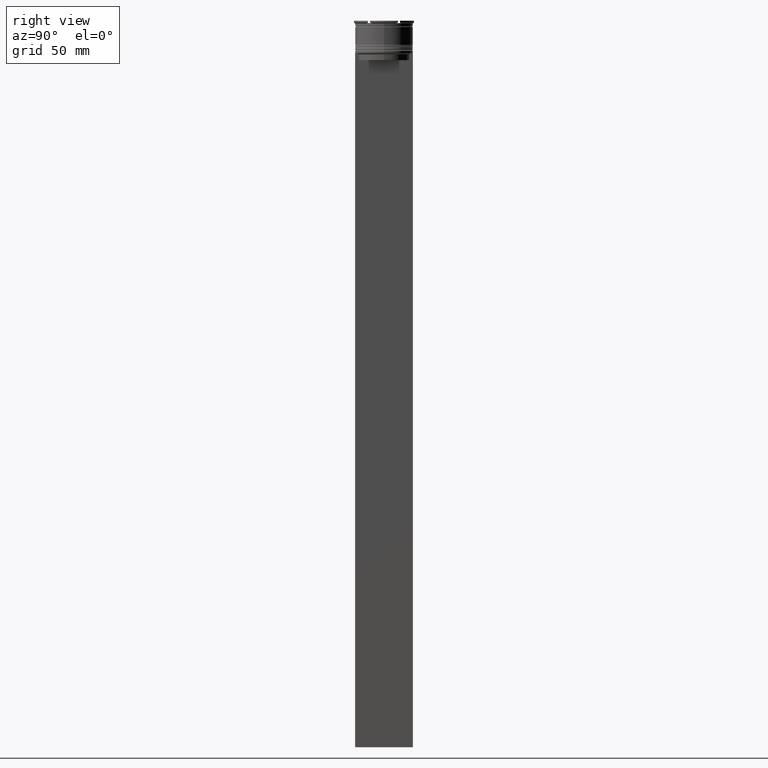
[diagram: clean part render]
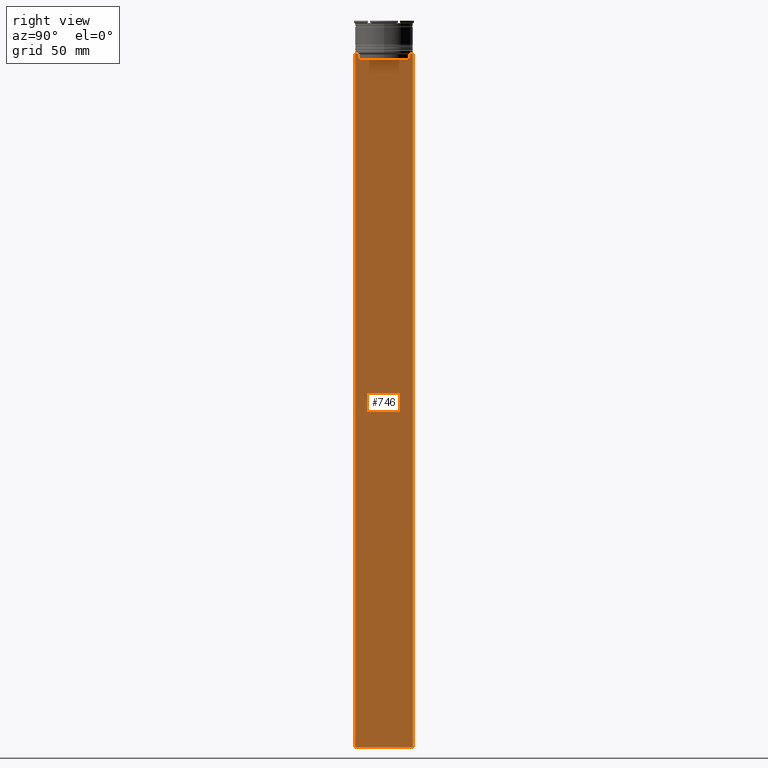
[diagram: same view with one face highlighted and labeled with its STEP entity id]
A machine part, right view. The second image highlights one B-rep face of the part: STEP entity #746.
In plain terms, the highlighted planar face has unit normal (-1, 0, 0).
Its self-contained STEP definition (entity closure, byte-faithful):
#2 = ORIENTED_EDGE ( 'NONE', *, *, #2653, .T. ) ;
#83 = DIRECTION ( 'NONE',  ( 0.000000000000000000, 1.000000000000000000, 0.000000000000000000 ) ) ;
#91 = ORIENTED_EDGE ( 'NONE', *, *, #1331, .T. ) ;
#102 = DIRECTION ( 'NONE',  ( 0.000000000000000000, 0.000000000000000000, -1.000000000000000000 ) ) ;
#154 = EDGE_CURVE ( 'NONE', #500, #2694, #1436, .T. ) ;
#173 = CARTESIAN_POINT ( 'NONE',  ( 0.5000000000000000000, -12.49999999999999289, -14.00000000000000178 ) ) ;
#187 = CARTESIAN_POINT ( 'NONE',  ( 0.5000000000000000000, -10.88852607105296144, -17.00000000000000000 ) ) ;
#198 = CARTESIAN_POINT ( 'NONE',  ( 0.5000000000000000000, 12.50000000000000711, -14.00000000000000178 ) ) ;
#327 = CARTESIAN_POINT ( 'NONE',  ( 0.5000000000000000000, 10.90000000000000213, -17.00000000000000000 ) ) ;
#349 = VECTOR ( 'NONE', #1174, 1000.000000000000000 ) ;
#361 = EDGE_CURVE ( 'NONE', #2367, #940, #436, .T. ) ;
#383 = ORIENTED_EDGE ( 'NONE', *, *, #1221, .T. ) ;
#390 = CARTESIAN_POINT ( 'NONE',  ( 0.5000000000000000000, -12.49999999999999289, -314.0000000000000000 ) ) ;
#405 = VECTOR ( 'NONE', #1342, 1000.000000000000000 ) ;
#435 = B_SPLINE_CURVE_WITH_KNOTS ( 'NONE', 3,
 ( #1528, #2176, #1299, #2424 ),
 .UNSPECIFIED., .F., .F.,
 ( 4, 4 ),
 ( 0.01935560801904634073, 0.02006307108468586772 ),
 .UNSPECIFIED. ) ;
#436 = LINE ( 'NONE', #2691, #2815 ) ;
#462 = DIRECTION ( 'NONE',  ( 0.000000000000000000, 0.000000000000000000, 1.000000000000000000 ) ) ;
#476 = DIRECTION ( 'NONE',  ( -0.000000000000000000, -0.000000000000000000, 1.000000000000000000 ) ) ;
#500 = VERTEX_POINT ( 'NONE', #1624 ) ;
#507 = CARTESIAN_POINT ( 'NONE',  ( 0.5000000000000000000, -12.49999999999999289, 11.01999200639360765 ) ) ;
#528 = LINE ( 'NONE', #1574, #2356 ) ;
#545 = LINE ( 'NONE', #327, #912 ) ;
#595 = ORIENTED_EDGE ( 'NONE', *, *, #2599, .T. ) ;
#616 = EDGE_CURVE ( 'NONE', #2098, #1039, #1406, .T. ) ;
#639 = LINE ( 'NONE', #2452, #405 ) ;
#746 = ADVANCED_FACE ( 'NONE', ( #2140 ), #1694, .F. ) ;
#776 = CARTESIAN_POINT ( 'NONE',  ( 0.5000000000000000000, 12.38991525394746773, -14.00000000000000178 ) ) ;
#794 = LINE ( 'NONE', #2335, #1370 ) ;
#805 = ORIENTED_EDGE ( 'NONE', *, *, #1205, .T. ) ;
#852 = VERTEX_POINT ( 'NONE', #2297 ) ;
#867 = CARTESIAN_POINT ( 'NONE',  ( 0.5000000000000000000, 10.88852607105296144, -17.00000000000000000 ) ) ;
#869 = VECTOR ( 'NONE', #476, 1000.000000000000000 ) ;
#912 = VECTOR ( 'NONE', #1023, 1000.000000000000000 ) ;
#940 = VERTEX_POINT ( 'NONE', #173 ) ;
#959 = VERTEX_POINT ( 'NONE', #1507 ) ;
#968 = LINE ( 'NONE', #2747, #1652 ) ;
#973 = CARTESIAN_POINT ( 'NONE',  ( 0.5000000000000000000, 12.50000000000000711, 11.01999200639360765 ) ) ;
#1016 = ORIENTED_EDGE ( 'NONE', *, *, #154, .T. ) ;
#1023 = DIRECTION ( 'NONE',  ( 0.000000000000000000, -1.000000000000000000, 0.000000000000000000 ) ) ;
#1039 = VERTEX_POINT ( 'NONE', #1141 ) ;
#1049 = EDGE_CURVE ( 'NONE', #1673, #852, #968, .T. ) ;
#1071 = ORIENTED_EDGE ( 'NONE', *, *, #361, .T. ) ;
#1089 = VERTEX_POINT ( 'NONE', #1618 ) ;
#1117 = EDGE_CURVE ( 'NONE', #959, #2367, #528, .T. ) ;
#1122 = CARTESIAN_POINT ( 'NONE',  ( 0.5000000000000000000, -11.05536450423839234, -14.33333718996393102 ) ) ;
#1141 = CARTESIAN_POINT ( 'NONE',  ( 0.5000000000000000000, 12.50000000000000711, -314.0000000000000000 ) ) ;
#1149 = DIRECTION ( 'NONE',  ( 0.000000000000000000, -1.000000000000000000, 0.000000000000000000 ) ) ;
#1165 = DIRECTION ( 'NONE',  ( 0.000000000000000000, 0.000000000000000000, -1.000000000000000000 ) ) ;
#1174 = DIRECTION ( 'NONE',  ( 0.000000000000000000, 0.000000000000000000, -1.000000000000000000 ) ) ;
#1205 = EDGE_CURVE ( 'NONE', #2694, #2233, #545, .T. ) ;
#1221 = EDGE_CURVE ( 'NONE', #940, #2098, #794, .T. ) ;
#1246 = ORIENTED_EDGE ( 'NONE', *, *, #1117, .T. ) ;
#1299 = CARTESIAN_POINT ( 'NONE',  ( 0.5000000000000000000, 11.05536450345590538, -14.33333719074559376 ) ) ;
#1323 = AXIS2_PLACEMENT_3D ( 'NONE', #507, #1587, #462 ) ;
#1331 = EDGE_CURVE ( 'NONE', #852, #500, #435, .T. ) ;
#1332 = ORIENTED_EDGE ( 'NONE', *, *, #1754, .T. ) ;
#1342 = DIRECTION ( 'NONE',  ( 0.000000000000000000, -1.000000000000000000, 0.000000000000000000 ) ) ;
#1361 = VECTOR ( 'NONE', #1165, 1000.000000000000000 ) ;
#1370 = VECTOR ( 'NONE', #102, 1000.000000000000000 ) ;
#1406 = LINE ( 'NONE', #2089, #1883 ) ;
#1413 = DIRECTION ( 'NONE',  ( 0.000000000000000000, -1.000000000000000000, 0.000000000000000000 ) ) ;
#1436 = LINE ( 'NONE', #2561, #1361 ) ;
#1492 = ORIENTED_EDGE ( 'NONE', *, *, #616, .T. ) ;
#1507 = CARTESIAN_POINT ( 'NONE',  ( 0.5000000000000000000, -11.38902980942626719, -14.00000000000000178 ) ) ;
#1528 = CARTESIAN_POINT ( 'NONE',  ( 0.5000000000000000000, 11.38902980942626719, -14.00000000000000178 ) ) ;
#1536 = B_SPLINE_CURVE_WITH_KNOTS ( 'NONE', 3,
 ( #1770, #1122, #2847, #2178 ),
 .UNSPECIFIED., .F., .F.,
 ( 4, 4 ),
 ( 0.05041323384703226551, 0.05112713601261605068 ),
 .UNSPECIFIED. ) ;
#1574 = CARTESIAN_POINT ( 'NONE',  ( 0.5000000000000000000, -12.49999999999999289, -14.00000000000000178 ) ) ;
#1580 = CARTESIAN_POINT ( 'NONE',  ( 0.5000000000000000000, -10.88852607105296322, 0.000000000000000000 ) ) ;
#1587 = DIRECTION ( 'NONE',  ( -1.000000000000000000, 0.000000000000000000, 0.000000000000000000 ) ) ;
#1618 = CARTESIAN_POINT ( 'NONE',  ( 0.5000000000000000000, -10.88852607105296322, -14.50000000000000000 ) ) ;
#1624 = CARTESIAN_POINT ( 'NONE',  ( 0.5000000000000000000, 10.88852607105296322, -14.50000000000000000 ) ) ;
#1633 = CARTESIAN_POINT ( 'NONE',  ( 0.5000000000000000000, -12.38991525394746773, -14.00000000000000178 ) ) ;
#1652 = VECTOR ( 'NONE', #2512, 1000.000000000000000 ) ;
#1673 = VERTEX_POINT ( 'NONE', #776 ) ;
#1694 = PLANE ( 'NONE',  #1323 ) ;
#1709 = LINE ( 'NONE', #1580, #869 ) ;
#1754 = EDGE_CURVE ( 'NONE', #2233, #1089, #1709, .T. ) ;
#1770 = CARTESIAN_POINT ( 'NONE',  ( 0.5000000000000000000, -10.88852607105296322, -14.50000000000000000 ) ) ;
#1858 = LINE ( 'NONE', #973, #349 ) ;
#1883 = VECTOR ( 'NONE', #83, 1000.000000000000000 ) ;
#1979 = EDGE_CURVE ( 'NONE', #2192, #1039, #1858, .T. ) ;
#2089 = CARTESIAN_POINT ( 'NONE',  ( 0.5000000000000000000, -12.49999999999999289, -314.0000000000000000 ) ) ;
#2098 = VERTEX_POINT ( 'NONE', #390 ) ;
#2140 = FACE_OUTER_BOUND ( 'NONE', #2856, .T. ) ;
#2176 = CARTESIAN_POINT ( 'NONE',  ( 0.5000000000000000000, 11.22219891375843304, -14.16667035472756808 ) ) ;
#2178 = CARTESIAN_POINT ( 'NONE',  ( 0.5000000000000000000, -11.38902980942626719, -14.00000000000000178 ) ) ;
#2192 = VERTEX_POINT ( 'NONE', #198 ) ;
#2233 = VERTEX_POINT ( 'NONE', #187 ) ;
#2297 = CARTESIAN_POINT ( 'NONE',  ( 0.5000000000000000000, 11.38902980942626719, -14.00000000000000178 ) ) ;
#2335 = CARTESIAN_POINT ( 'NONE',  ( 0.5000000000000000000, -12.49999999999999289, 11.01999200639360765 ) ) ;
#2356 = VECTOR ( 'NONE', #1413, 1000.000000000000000 ) ;
#2367 = VERTEX_POINT ( 'NONE', #1633 ) ;
#2424 = CARTESIAN_POINT ( 'NONE',  ( 0.5000000000000000000, 10.88852607105296322, -14.50000000000000000 ) ) ;
#2452 = CARTESIAN_POINT ( 'NONE',  ( 0.5000000000000000000, -12.49999999999999289, -14.00000000000000178 ) ) ;
#2461 = ORIENTED_EDGE ( 'NONE', *, *, #1979, .F. ) ;
#2512 = DIRECTION ( 'NONE',  ( 0.000000000000000000, -1.000000000000000000, 0.000000000000000000 ) ) ;
#2561 = CARTESIAN_POINT ( 'NONE',  ( 0.5000000000000000000, 10.88852607105296322, 0.000000000000000000 ) ) ;
#2599 = EDGE_CURVE ( 'NONE', #1089, #959, #1536, .T. ) ;
#2653 = EDGE_CURVE ( 'NONE', #2192, #1673, #639, .T. ) ;
#2686 = ORIENTED_EDGE ( 'NONE', *, *, #1049, .T. ) ;
#2691 = CARTESIAN_POINT ( 'NONE',  ( 0.5000000000000000000, -12.49999999999999289, -14.00000000000000178 ) ) ;
#2694 = VERTEX_POINT ( 'NONE', #867 ) ;
#2747 = CARTESIAN_POINT ( 'NONE',  ( 0.5000000000000000000, -12.49999999999999289, -14.00000000000000178 ) ) ;
#2815 = VECTOR ( 'NONE', #1149, 1000.000000000000000 ) ;
#2847 = CARTESIAN_POINT ( 'NONE',  ( 0.5000000000000000000, -11.22219891450652973, -14.16667035398018903 ) ) ;
#2856 = EDGE_LOOP ( 'NONE', ( #2686, #91, #1016, #805, #1332, #595, #1246, #1071, #383, #1492, #2461, #2 ) ) ;